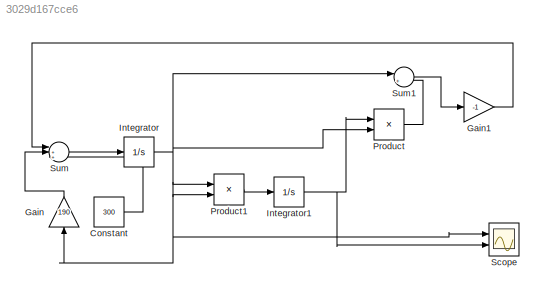
MODEL slx_3029d167cce6
KIND model
CONFIG AbsTol = auto
CONFIG EnableMultiTasking = off
CONFIG FixedStep = auto
CONFIG MaxStep = auto
CONFIG MinStep = auto
CONFIG RelTol = 1e-3
CONFIG SampleTimeConstraint = Unconstrained
CONFIG SolverName = VariableStepAuto
CONFIG StartTime = 0.0
CONFIG StopTime = 10.0
BLOCK [Constant] Constant
  Value = 300
BLOCK [Gain] Gain
  Gain = 190
  NameLocation = right
BLOCK [Gain] Gain1
  Gain = -1
BLOCK [Integrator] Integrator
  InitialCondition = 100
  Ports = [1, 1]
BLOCK [Integrator] Integrator1
  Ports = [1, 1]
BLOCK [Product] Product
  Ports = [2, 1]
BLOCK [Product] Product1
  Ports = [2, 1]
BLOCK [Scope] Scope
  Floating = off
  NumInputPorts = 2
  Ports = [2]
  ScopeSpecificationString = Simulink.scopes.TimeScopeBlockCfg('CurrentConfiguration', extmgr.ConfigurationSet(extmgr.Configuration('Core','General UI',true),extmgr.Configuration('Core','Source UI',true),extmgr.Configuration('Sources','WiredSimulink',true),extmgr.Configuration('Visuals','Time Domain',true,'SerializedDisplays',{struct('MinYLimReal','-66.82404','MaxYLimReal','601.41637','YLabelReal','','MinYLimMag','0.00000','M...<+1731ch>
BLOCK [Sum] Sum
  Inputs = |+++
  Ports = [3, 1]
BLOCK [Sum] Sum1
  Inputs = |++
  Ports = [2, 1]
LINE Constant:1 -> Sum:3
LINE Gain1:1 -> Sum:1
LINE Gain:1 -> Sum:2
NET Integrator1:1 -> Product:1, Scope:2
NET Integrator:1 -> Gain:1, Product1:1, Product1:2, Product:2, Scope:1, Sum1:1
LINE Product1:1 -> Integrator1:1
LINE Product:1 -> Sum1:2
LINE Sum1:1 -> Gain1:1
LINE Sum:1 -> Integrator:1
note: NET lines group one-source signal fan-out (src -> all destinations, sorted); 1:1 wires keep LINE
